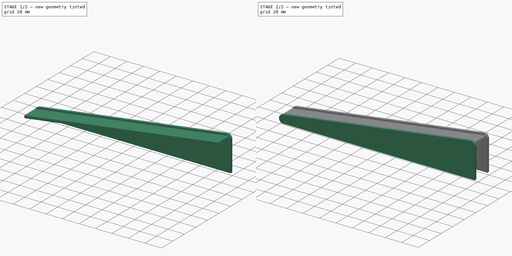
[diagram: build sequence overview — one tinted view per stage of 2, left to right]
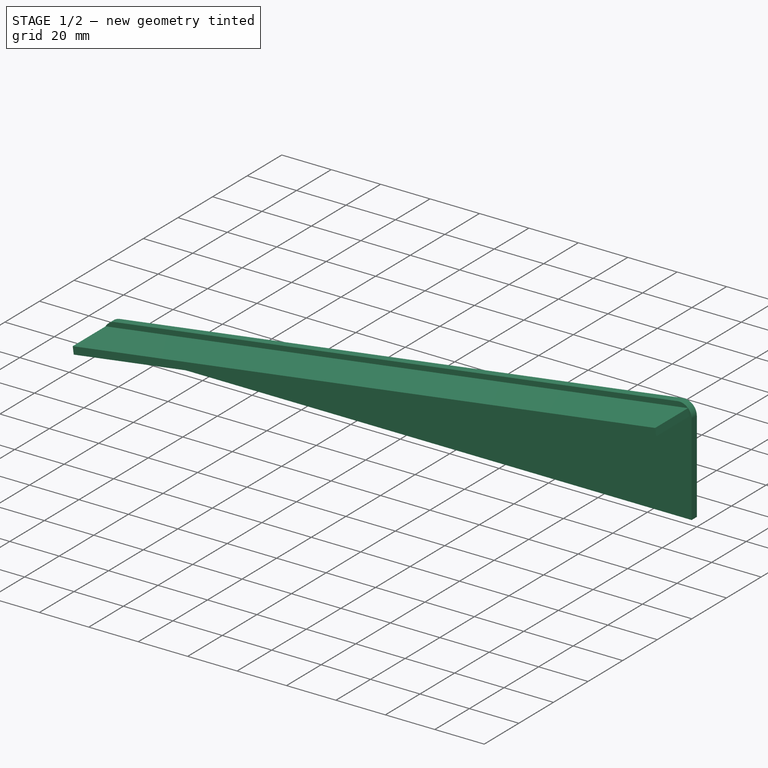
[diagram: stage 1 of 2 — iso view after this stage's code; geometry added in this stage tinted green]
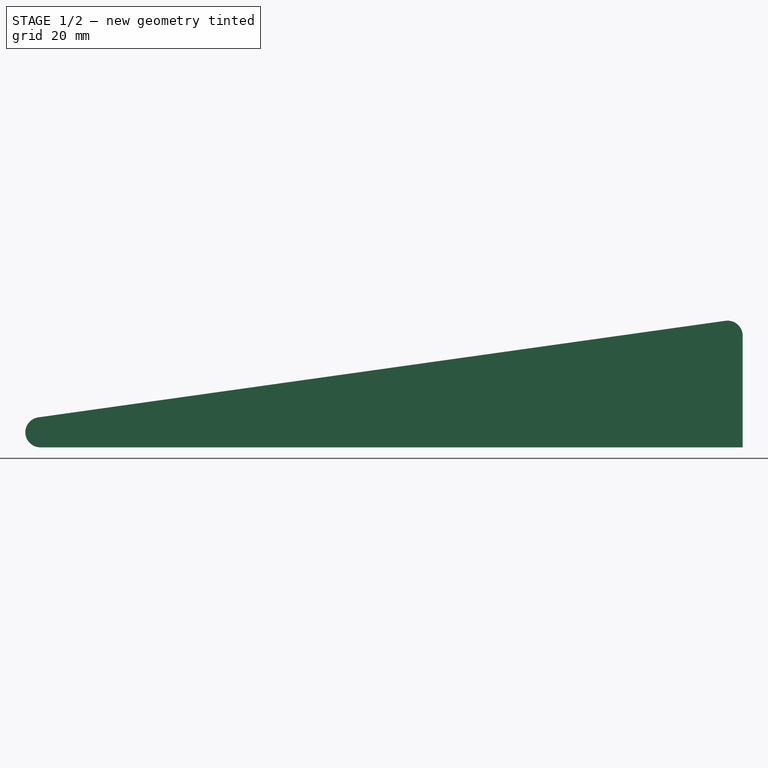
[diagram: stage 1 of 2 — front view after this stage's code; geometry added in this stage tinted green]
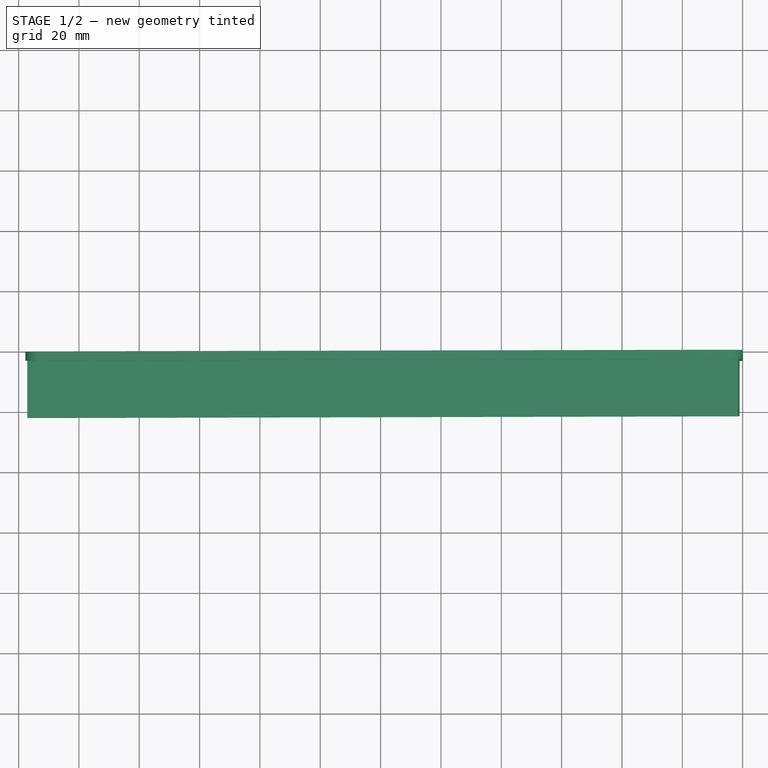
[diagram: stage 1 of 2 — top view after this stage's code; geometry added in this stage tinted green]
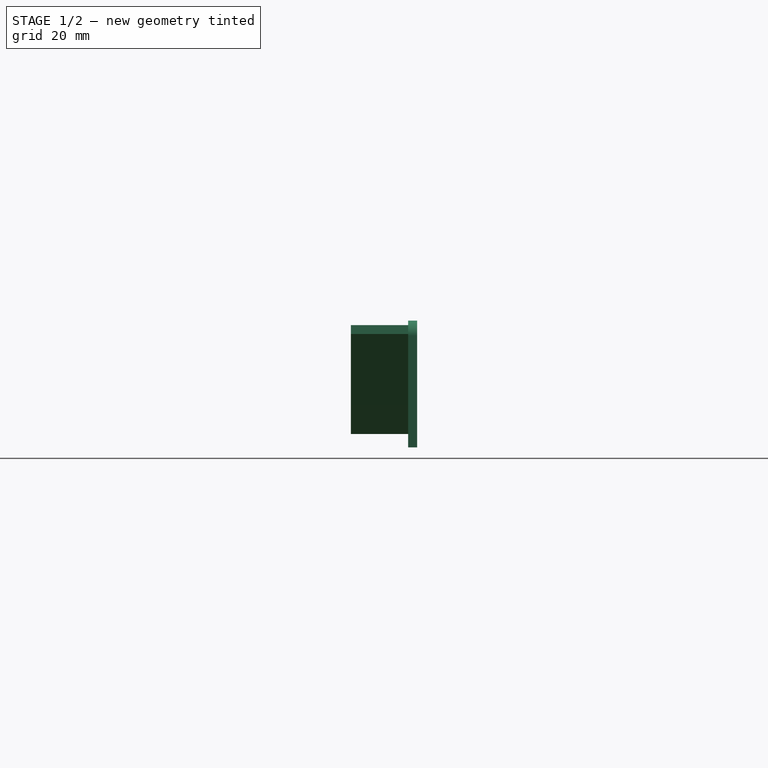
[diagram: stage 1 of 2 — right view after this stage's code; geometry added in this stage tinted green]
FCSTD DOCUMENT  (FreeCAD 0.19R23756 (Git))
Label: HoppelSchraege
License: All rights reserved
LicenseURL: http://en.wikipedia.org/wiki/All_rights_reserved
objects: Sketcher::SketchObject×3, PartDesign::Pad×3, Spreadsheet::Sheet×1, PartDesign::Plane×1, PartDesign::Mirrored×1, Part::FeaturePython×1, PartDesign::Body×1
note: 13 computed .brp shape members not serialized (recipe doc carries the construction recipe); baked Part::Feature solids carry a one-line shape summary decoded from their .brp

FEATURE [Spreadsheet::Sheet] Spreadsheet
  cells = A1=laenge; B1(laenge)=230; A2=breite; B2(breite)==materialDicke * (2 + 3) + 4; A3=winkel; B3(winkel)=8; A4=materialDicke; B4(materialDicke)=3
FEATURE [Sketcher::SketchObject] Sketch
  FullyConstrained = false
  MapMode = 5
  Placement = pos=(0,0,0) rot=(1,0,0;1.5708rad)
  Support = -> [XZ_Plane]
  expr: Constraints[2] = Spreadsheet.winkel
  expr: Constraints[11] = Spreadsheet.laenge
  sketch-geometry (5):
    g0: LineSegment StartX=0 StartY=0 StartZ=0 EndX=-232.762 EndY=0 EndZ=0
    g1: LineSegment StartX=0 StartY=0 StartZ=0 EndX=0 EndY=37.0098 EndZ=0
    g2: LineSegment StartX=-5.69587 StartY=41.9612 StartZ=0 EndX=-233.458 EndY=9.95134 EndZ=0
    g3: ArcOfCircle CenterX=-5 CenterY=37.0098 CenterZ=0 NormalX=0 NormalY=0 NormalZ=1 AngleXU=0 Radius=5 StartAngle=0 EndAngle=1.71042
    g4: ArcOfCircle CenterX=-232.762 CenterY=5 CenterZ=0 NormalX=0 NormalY=0 NormalZ=1 AngleXU=0 Radius=5 StartAngle=1.71042 EndAngle=4.71239
  constraints (12):
    c: Coincident(g0,g-1)
    c: Coincident(g1,g0)
    c: Angle(g0,g2) = 0.139626
    c: Tangent(g2,g3) = -1.5708
    c: Tangent(g1,g3) = -1.5708
    c: Radius(g3) = 5
    c: Vertical(g1)
    c: Tangent(g2,g4) = -1.5708
    c: Tangent(g0,g4) = 1.5708
    c: Radius(g4) = 5
    c: Horizontal(g0)
    c: Distance(g2) = 230
FEATURE [PartDesign::Pad] Pad
  AllowMultiFace = false
  Direction = (1,1,1)
  Length = 3
  Length2 = 100
  Placement = pos=(0,0,0) rot=(1,0,0;1.5708rad)
  Profile = -> Sketch
  Type = 0
  expr: Length = Spreadsheet.materialDicke
FEATURE [Sketcher::SketchObject] Sketch001
  ExternalGeometry = -> [Pad]
  FullyConstrained = false
  MapMode = 5
  Placement = pos=(0,-3,7e-16) rot=(1,0,0;1.5708rad)
  Support = -> [Pad]
  expr: Constraints[7] = Spreadsheet.materialDicke
  sketch-geometry (6):
    g0: LineSegment StartX=-236.723 StartY=4.44331 StartZ=0 EndX=-1.03893 EndY=37.5665 EndZ=0
    g1: LineSegment StartX=-1.03893 StartY=37.5665 StartZ=0 EndX=-1.45645 EndY=40.5373 EndZ=0
    g2: LineSegment StartX=-1.45645 StartY=40.5373 StartZ=0 EndX=-237.14 EndY=7.41411 EndZ=0
    g3: LineSegment StartX=-237.14 StartY=7.41411 StartZ=0 EndX=-236.723 EndY=4.44331 EndZ=0
    g4: GeomPoint X=-233.179 Y=7.9708 Z=0
    g5: LineSegment StartX=-233.179 StartY=7.9708 StartZ=0 EndX=-233.458 EndY=9.95134 EndZ=0
  constraints (16):
    c: Coincident(g1,g0)
    c: Coincident(g2,g1)
    c: Coincident(g3,g2)
    c: Parallel(g-3,g2)
    c: Parallel(g-3,g0)
    c: Perpendicular(g3,g0)
    c: Perpendicular(g1,g0)
    c: Distance(g3) = 3
    c: Coincident(g3,g0)
    c: PointOnObject(g1,g-4)
    c: PointOnObject(g2,g-5)
    c: PointOnObject(g4,g2)
    c: Coincident(g5,g4)
    c: Coincident(g5,g-5)
    c: Perpendicular(g2,g5)
    c: Distance(g5) = 2
FEATURE [PartDesign::Pad] Pad001
  AllowMultiFace = false
  BaseFeature = -> Pad
  Direction = (1,1,1)
  Length = 19
  Length2 = 100
  Placement = pos=(0,0,0) rot=(1,0,0;1.5708rad)
  Profile = -> Sketch001
  Type = 0
  expr: Length = Spreadsheet.breite
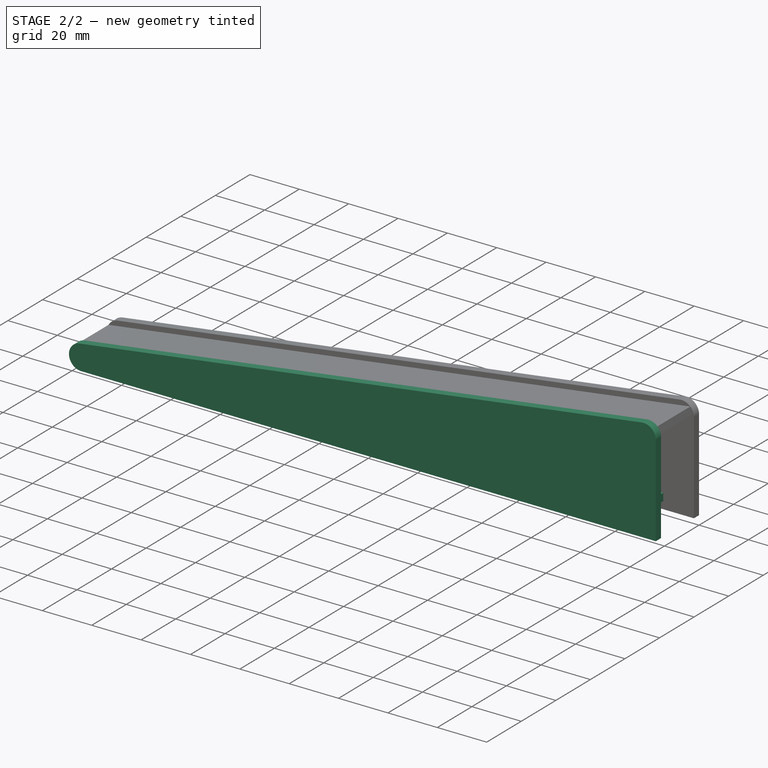
[diagram: stage 2 of 2 — iso view after this stage's code; geometry added in this stage tinted green]
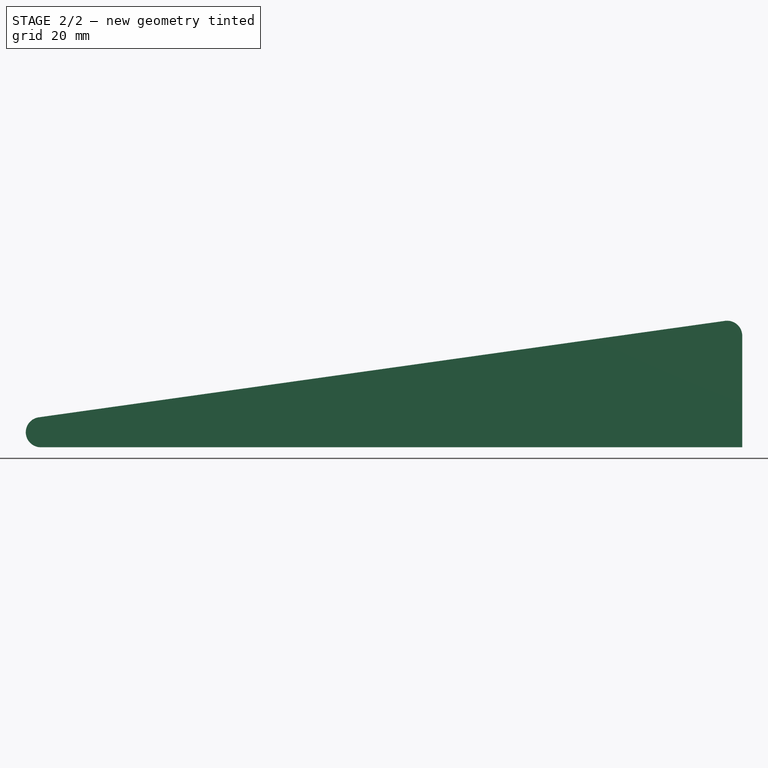
[diagram: stage 2 of 2 — front view after this stage's code; geometry added in this stage tinted green]
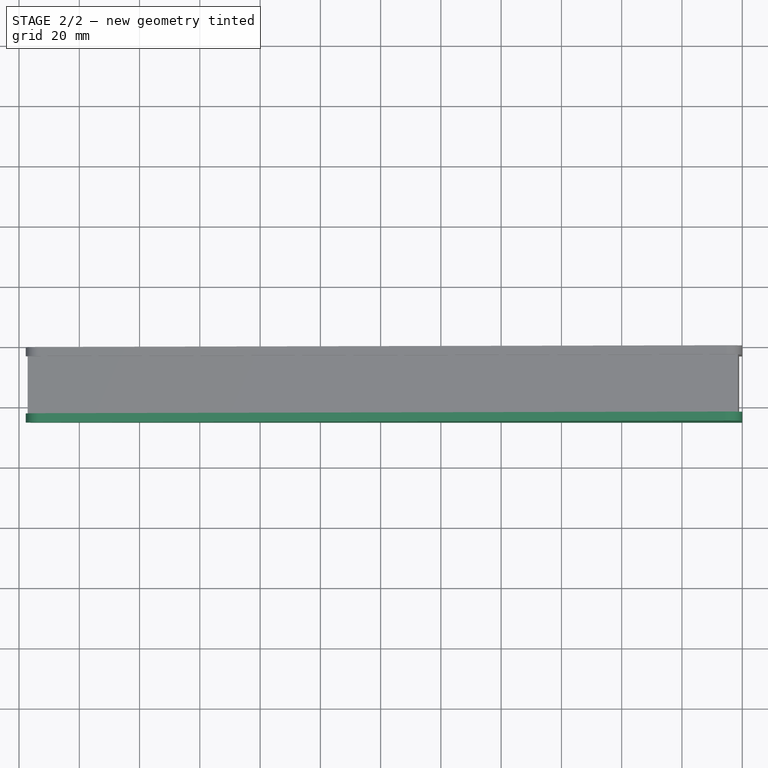
[diagram: stage 2 of 2 — top view after this stage's code; geometry added in this stage tinted green]
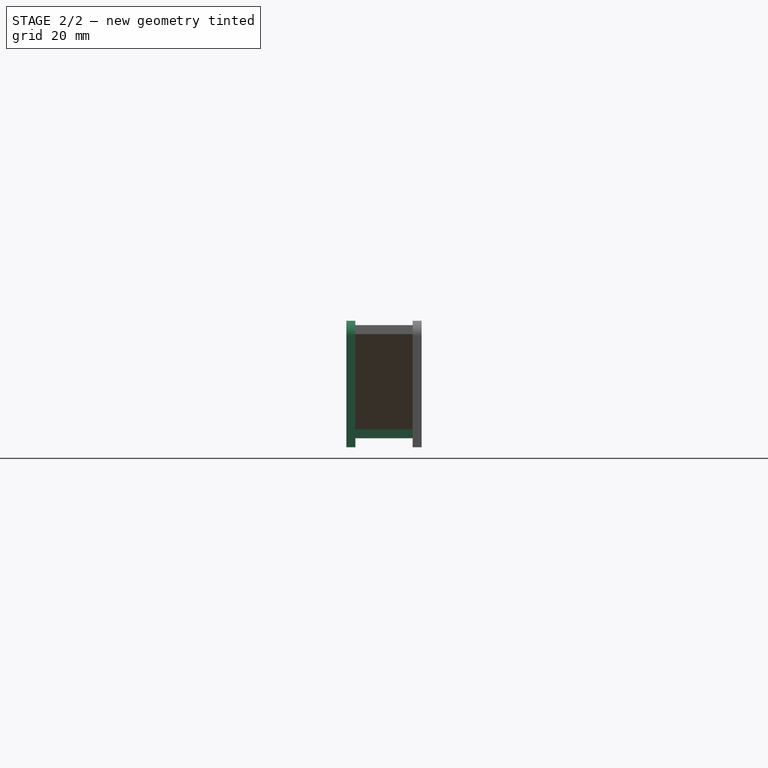
[diagram: stage 2 of 2 — right view after this stage's code; geometry added in this stage tinted green]
FEATURE [PartDesign::Plane] DatumPlane
  Length = 289.291
  MapMode = 45
  Placement = pos=(-1.45645,-12.5,40.5373) rot=(0,0.707107,0.707107;3.14159rad)
  ResizeMode = 0
  Support = -> [Pad001]
  Width = 93.5229
FEATURE [PartDesign::Mirrored] Mirrored
  BaseFeature = -> Pad001
  MirrorPlane = -> DatumPlane
  Originals = -> [Pad]
  Placement = pos=(0,0,0) rot=(1,0,0;1.5708rad)
FEATURE [Part::FeaturePython] MultiJoin  # WARN: FeaturePython — macro-defined, semantics opaque (R4)
FEATURE [Sketcher::SketchObject] Sketch002
  ExternalGeometry = -> [Pad]
  FullyConstrained = false
  MapMode = 5
  Placement = pos=(0,-3,7e-16) rot=(1,0,0;1.5708rad)
  Support = -> [Pad]
  expr: Constraints[15] = Spreadsheet.materialDicke
  sketch-geometry (10):
    g0: LineSegment StartX=-232.762 StartY=3 StartZ=0 EndX=0 EndY=3 EndZ=0
    g1: LineSegment StartX=-232.762 StartY=3e-16 StartZ=0 EndX=-232.762 EndY=3 EndZ=0
    g2: LineSegment StartX=-163.146 StartY=3 StartZ=0 EndX=-123.146 EndY=3 EndZ=0
    g3: LineSegment StartX=-123.146 StartY=3 StartZ=0 EndX=-123.146 EndY=6 EndZ=0
    g4: LineSegment StartX=-123.146 StartY=6 StartZ=0 EndX=-163.146 EndY=6 EndZ=0
    g5: LineSegment StartX=-163.146 StartY=6 StartZ=0 EndX=-163.146 EndY=3 EndZ=0
    g6: LineSegment StartX=-52.3742 StartY=6 StartZ=0 EndX=-12.3742 EndY=6 EndZ=0
    g7: LineSegment StartX=-12.3742 StartY=6 StartZ=0 EndX=-12.3742 EndY=3 EndZ=0
    g8: LineSegment StartX=-12.3742 StartY=3 StartZ=0 EndX=-52.3742 EndY=3 EndZ=0
    g9: LineSegment StartX=-52.3742 StartY=3 StartZ=0 EndX=-52.3742 EndY=6 EndZ=0
  constraints (28):
    c: Horizontal(g0)
    c: Coincident(g1,g-3)
    c: Vertical(g1)
    c: DistanceY(g1,g1) = 3
    c: PointOnObject(g0,g-2)
    c: Coincident(g0,g1)
    c: Coincident(g2,g3)
    c: Coincident(g3,g4)
    c: Coincident(g4,g5)
    c: Coincident(g5,g2)
    c: Horizontal(g2)
    c: Horizontal(g4)
    c: Vertical(g3)
    c: Vertical(g5)
    c: PointOnObject(g2,g0)
    c: DistanceY(g3,g3) = 3
    c: DistanceX(g4,g4) = 40
    c: Coincident(g6,g7)
    c: Coincident(g7,g8)
    c: Coincident(g8,g9)
    c: Coincident(g9,g6)
    c: Horizontal(g6)
    c: Horizontal(g8)
    c: Vertical(g7)
    c: Vertical(g9)
    c: PointOnObject(g7,g0)
    c: Equal(g4,g6)
    c: Equal(g3,g9)
FEATURE [PartDesign::Pad] Pad002
  BaseFeature = -> Mirrored
  Direction = (1,1,1)
  Length = 19
  Length2 = 100
  Placement = pos=(0,0,0) rot=(1,0,0;1.5708rad)
  Profile = -> Sketch002
  Type = 0
  expr: Length = Spreadsheet.breite
FEATURE [PartDesign::Body] Body
  Group = -> [Sketch,Pad,Sketch001,Pad001,DatumPlane,Mirrored,Sketch002,Pad002]
  Origin = -> Origin
  Tip = -> Pad002
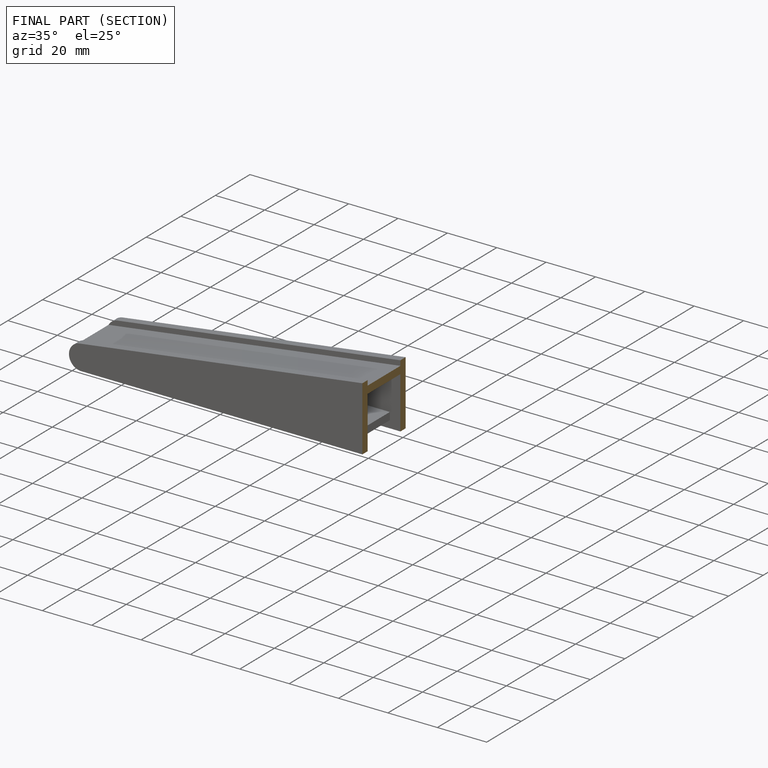
[diagram: finished part — half-section view (interior)]
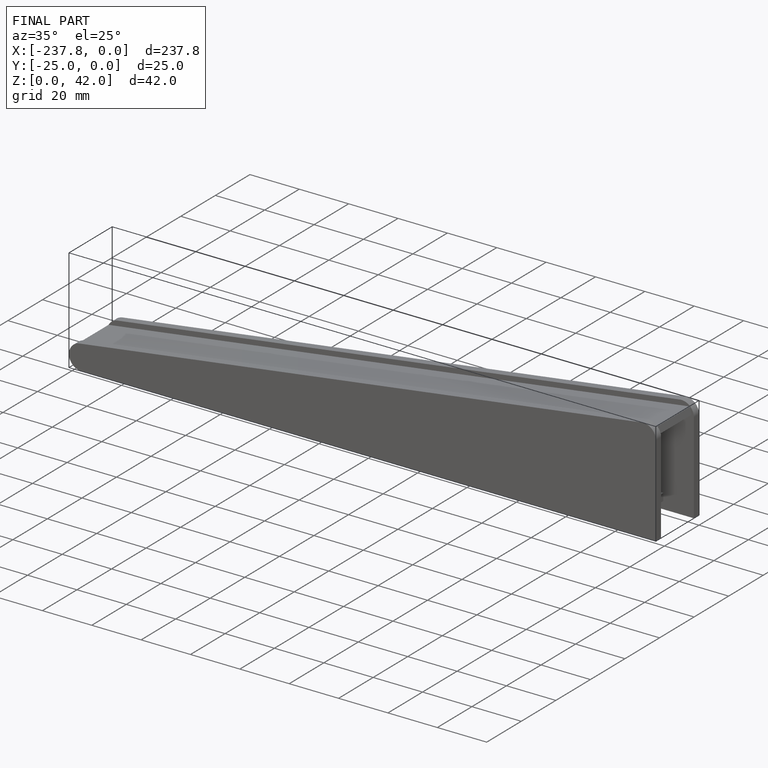
[diagram: finished part — iso view with bounding-box wireframe]
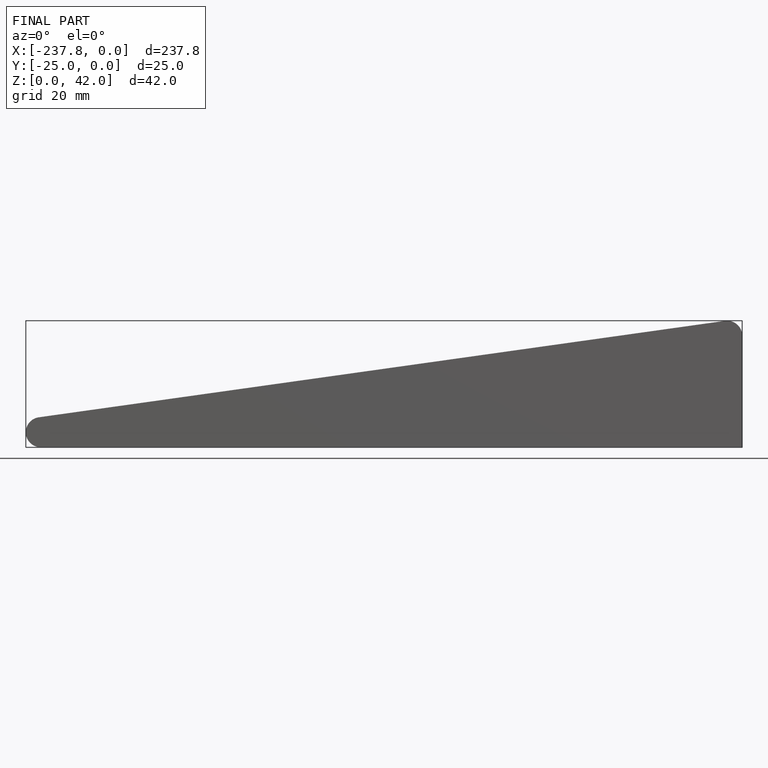
[diagram: finished part — front view with bounding-box wireframe]
